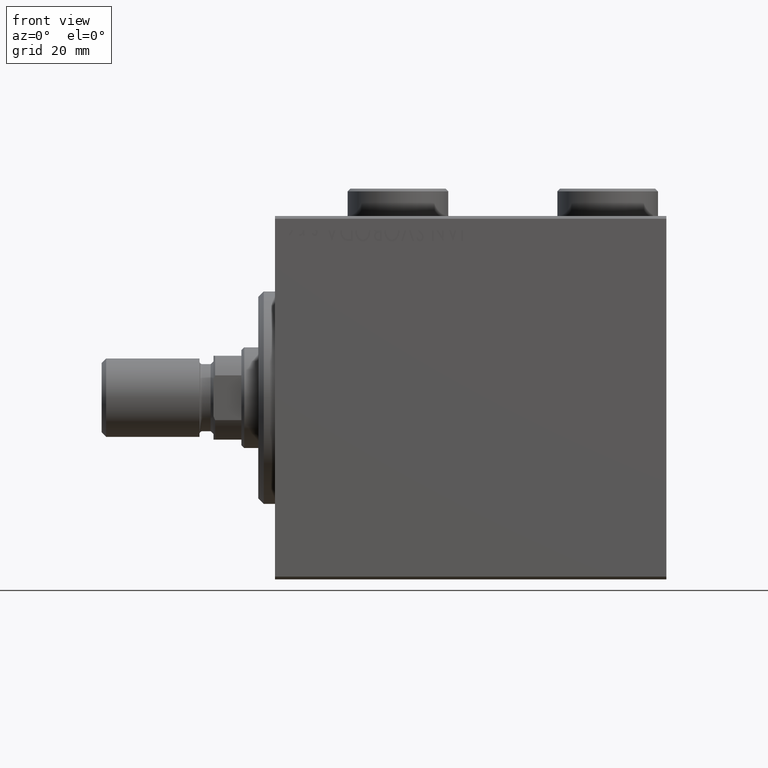
[diagram: clean part render]
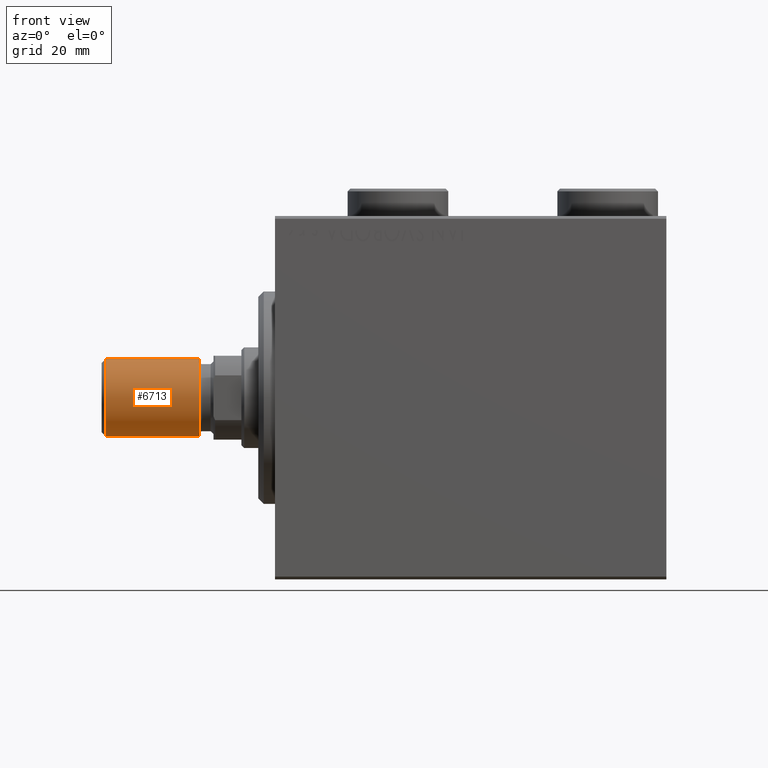
[diagram: same view with one face highlighted and labeled with its STEP entity id]
A machine part, front view. The second image highlights one B-rep face of the part: STEP entity #6713.
In plain terms, the highlighted cylindrical surface (partial cylindrical patch) has radius 7 mm, axis along (-1, -0, 0).
Its self-contained STEP definition (entity closure, byte-faithful):
#785 = DIRECTION ( 'NONE',  ( -1.000000000000000000, 0.000000000000000000, 0.000000000000000000 ) ) ;
#2380 = ORIENTED_EDGE ( 'NONE', *, *, #37280, .F. ) ;
#3754 = VECTOR ( 'NONE', #37459, 1000.000000000000000 ) ;
#3829 = CYLINDRICAL_SURFACE ( 'NONE', #33871, 7.000000000000000000 ) ;
#3838 = DIRECTION ( 'NONE',  ( -0.000000000000000000, -0.000000000000000000, 1.000000000000000000 ) ) ;
#4399 = CARTESIAN_POINT ( 'NONE',  ( 7.000000000000000000, 8.572527594031473190E-16, 17.50000000000000000 ) ) ;
#5927 = AXIS2_PLACEMENT_3D ( 'NONE', #7806, #21778, #18518 ) ;
#6475 = CIRCLE ( 'NONE', #25028, 7.000000000000000000 ) ;
#6713 = ADVANCED_FACE ( 'NONE', ( #21298 ), #3829, .T. ) ;
#7706 = EDGE_LOOP ( 'NONE', ( #42508, #2380, #43942, #23008 ) ) ;
#7806 = CARTESIAN_POINT ( 'NONE',  ( 0.000000000000000000, 0.000000000000000000, 17.50000000000000000 ) ) ;
#8907 = CIRCLE ( 'NONE', #5927, 7.000000000000000000 ) ;
#9405 = CARTESIAN_POINT ( 'NONE',  ( -7.000000000000000000, 0.000000000000000000, 17.50000000000000000 ) ) ;
#11289 = CARTESIAN_POINT ( 'NONE',  ( 0.000000000000000000, 0.000000000000000000, 17.50000000000000000 ) ) ;
#12598 = LINE ( 'NONE', #26761, #3754 ) ;
#14889 = LINE ( 'NONE', #39526, #36170 ) ;
#15311 = CARTESIAN_POINT ( 'NONE',  ( 7.000000000000000000, 8.572527594031473190E-16, 0.7999999999999986011 ) ) ;
#18518 = DIRECTION ( 'NONE',  ( 1.000000000000000000, 0.000000000000000000, 0.000000000000000000 ) ) ;
#20947 = VERTEX_POINT ( 'NONE', #4399 ) ;
#21298 = FACE_OUTER_BOUND ( 'NONE', #7706, .T. ) ;
#21778 = DIRECTION ( 'NONE',  ( 0.000000000000000000, 0.000000000000000000, 1.000000000000000000 ) ) ;
#23008 = ORIENTED_EDGE ( 'NONE', *, *, #25418, .T. ) ;
#25028 = AXIS2_PLACEMENT_3D ( 'NONE', #35711, #3838, #35251 ) ;
#25418 = EDGE_CURVE ( 'NONE', #35846, #44439, #6475, .T. ) ;
#26761 = CARTESIAN_POINT ( 'NONE',  ( 7.000000000000000000, 8.572527594031473190E-16, 17.50000000000000000 ) ) ;
#30171 = EDGE_CURVE ( 'NONE', #31930, #35846, #14889, .T. ) ;
#31930 = VERTEX_POINT ( 'NONE', #9405 ) ;
#33871 = AXIS2_PLACEMENT_3D ( 'NONE', #11289, #35478, #785 ) ;
#35251 = DIRECTION ( 'NONE',  ( 1.000000000000000000, 0.000000000000000000, 0.000000000000000000 ) ) ;
#35478 = DIRECTION ( 'NONE',  ( -0.000000000000000000, -0.000000000000000000, -1.000000000000000000 ) ) ;
#35711 = CARTESIAN_POINT ( 'NONE',  ( 0.000000000000000000, 0.000000000000000000, 0.7999999999999986011 ) ) ;
#35846 = VERTEX_POINT ( 'NONE', #38125 ) ;
#36170 = VECTOR ( 'NONE', #43249, 1000.000000000000000 ) ;
#37280 = EDGE_CURVE ( 'NONE', #31930, #20947, #8907, .T. ) ;
#37459 = DIRECTION ( 'NONE',  ( -0.000000000000000000, -0.000000000000000000, -1.000000000000000000 ) ) ;
#38125 = CARTESIAN_POINT ( 'NONE',  ( -7.000000000000000000, 0.000000000000000000, 0.7999999999999986011 ) ) ;
#39526 = CARTESIAN_POINT ( 'NONE',  ( -7.000000000000000000, 0.000000000000000000, 17.50000000000000000 ) ) ;
#42508 = ORIENTED_EDGE ( 'NONE', *, *, #43097, .F. ) ;
#43097 = EDGE_CURVE ( 'NONE', #20947, #44439, #12598, .T. ) ;
#43249 = DIRECTION ( 'NONE',  ( -0.000000000000000000, -0.000000000000000000, -1.000000000000000000 ) ) ;
#43942 = ORIENTED_EDGE ( 'NONE', *, *, #30171, .T. ) ;
#44439 = VERTEX_POINT ( 'NONE', #15311 ) ;